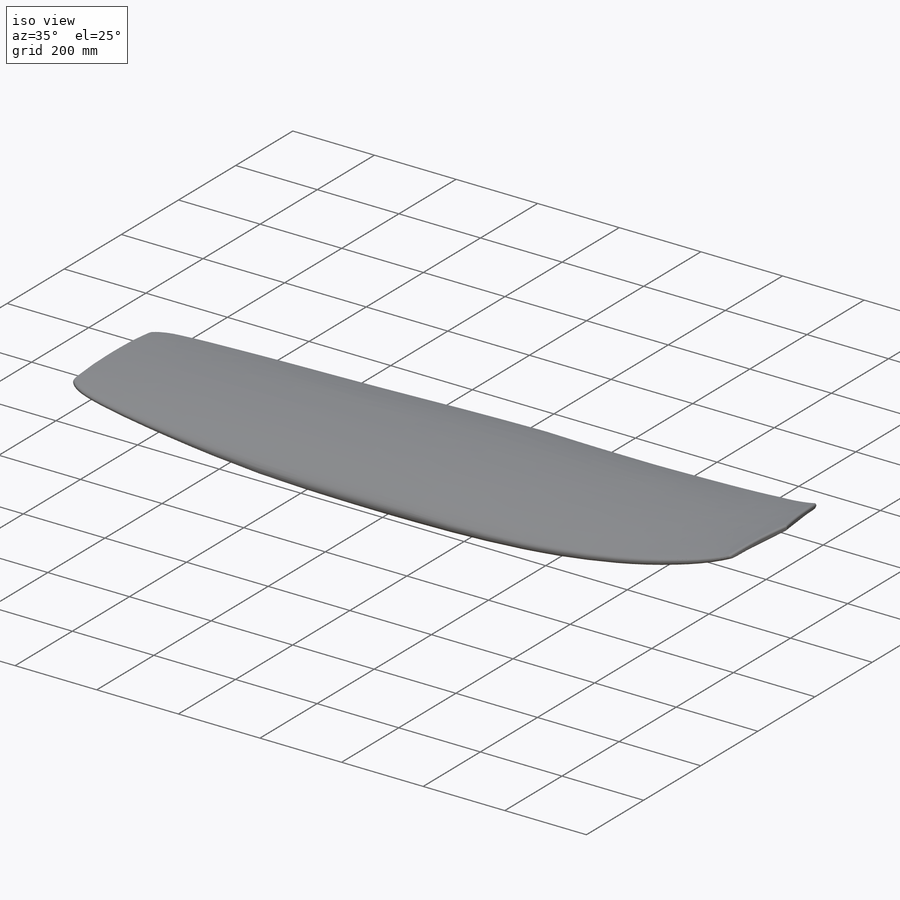
[diagram: iso view]
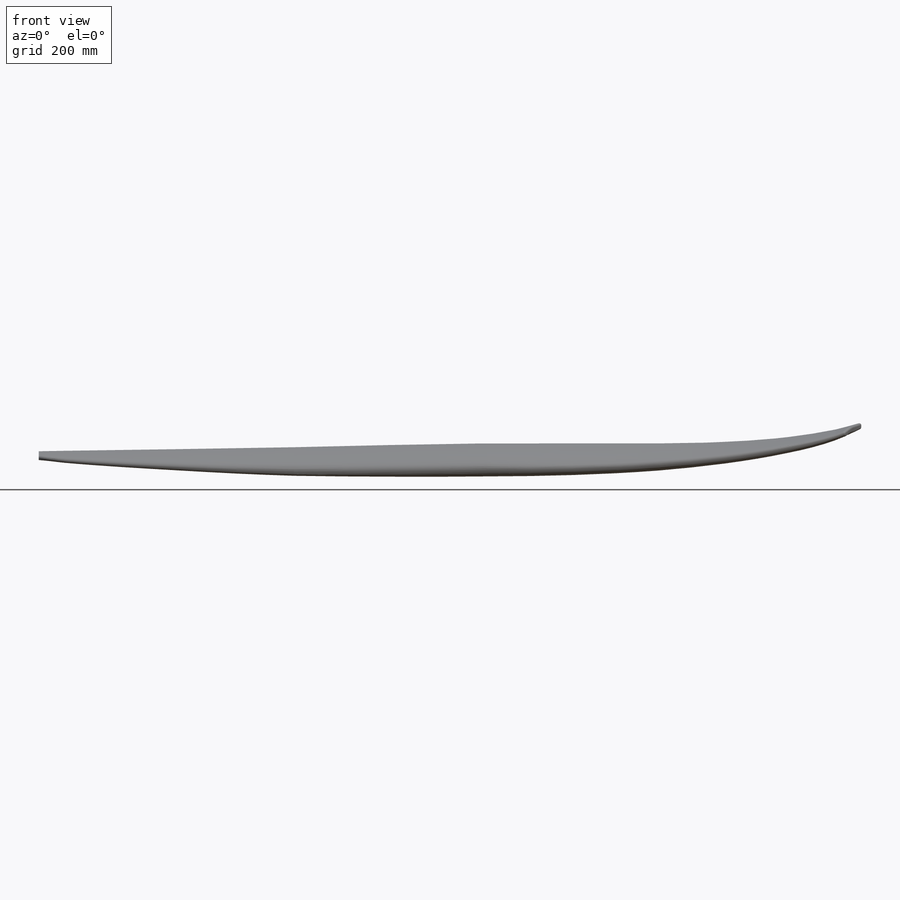
[diagram: front view]
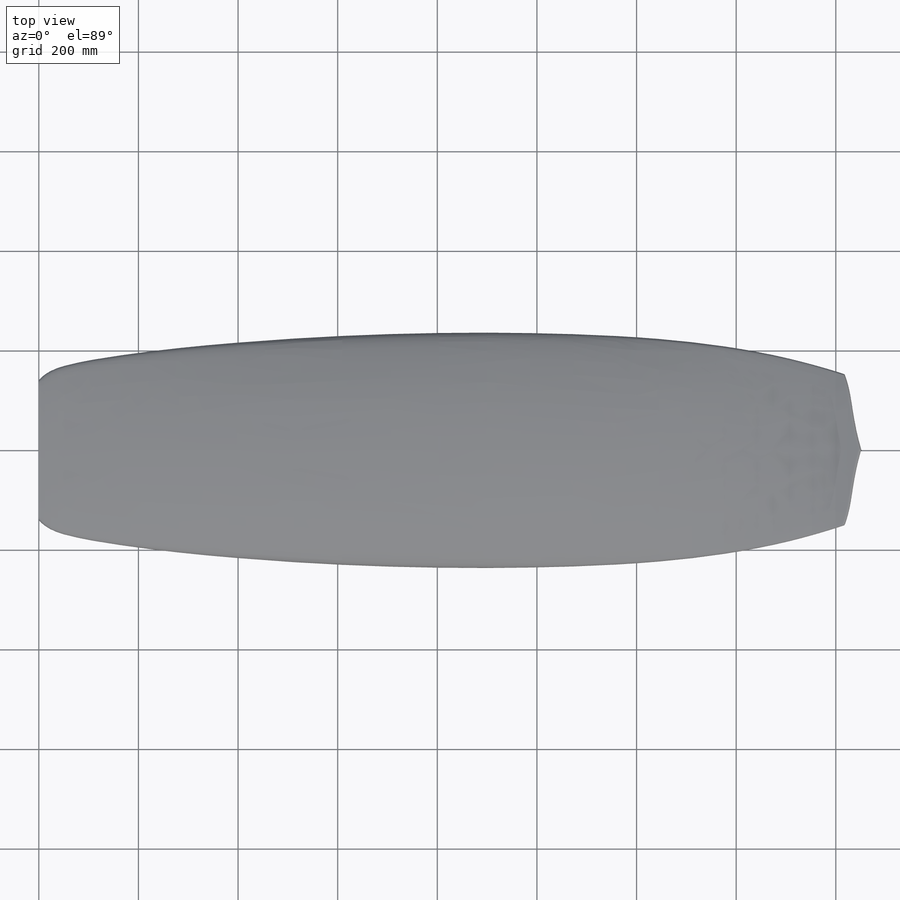
[diagram: top view]
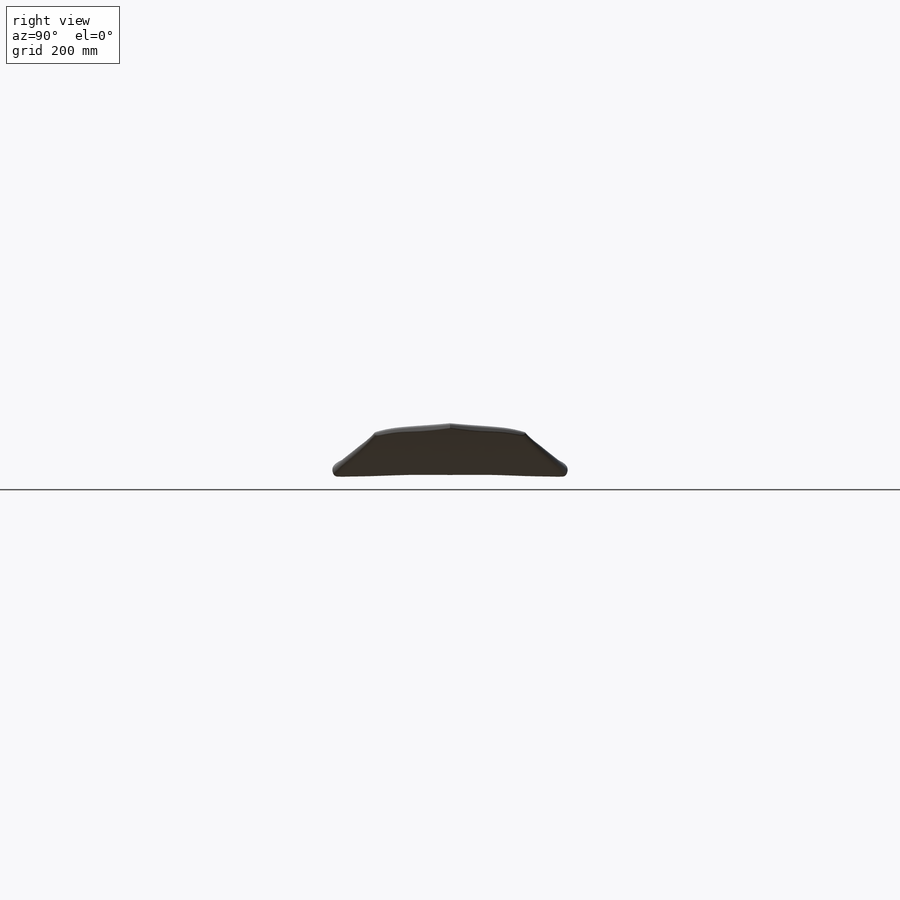
[diagram: right view]
SOLIDWORKS PART (.sldprt)
format: sldprt  version: not decoded by parser v0  size: 3,566,592 bytes
history: native  units: mm
features: sketch x52, plane x8, material x1, cut_extrude x1, mirror x1, fillet x1 (+13 scaffold rows collapsed)
feature tree (77):
  scaffold x13  (default folders/planes/origin — collapsed)
  material  "1060 Alloy"
  sketch  "REFERENCE"  dims[D1=1651.0mm D2=~1648.283638mm]
  sketch  "SIDE RAIL"  dims[D1=1651.0mm]
  sketch  "REF2"  dims[c1.D1=51.5mm c1.D2=512.4mm c1.D3=900.1mm c1.D4=1245.3mm c1.D5=1506.0mm c1.D6=1599.4mm c1.D7=~1648.283638mm c2.D1=51.5mm c2.D2=512.4mm c2.D3=900.1mm c2.D6=1599.4mm c2.D7=1651.0mm c2.D4=1245.3mm c2.D5=1506.0mm]
  sketch  "PROFILE"
  sketch  "Sketch14"
  sketch  "3DSketch3"
  plane  "0.0(1)"
  plane  "51.5(2)"
  plane  "512.4(3)"
  plane  "900.1(4)"
  plane  "1245.3(5)"
  plane  "1506.0(6)"
  plane  "1599.4(7)"
  sketch  "Sketch19"  dims[D1=~19.569618mm]
  sketch  "Sketch23"
  sketch  "Sketch25"
  sketch  "4.1"
  sketch  "1"  dims[D1=1.5mm D2=10.0mm]
  sketch  "2"  dims[D1=2.5mm]
  sketch  "3"  dims[D1=5.0mm D2=10.0mm]
  sketch  "4"  dims[D1=~14.440961mm D2=10.0mm D3=1000.0mm]
  sketch  "R3"
  sketch  "5.1"
  sketch  "5"  dims[D1=1499.0mm D2=10.0mm D3=30.0mm D4=135.0mm D5=26.0mm D6=~24.632459mm]
  sketch  "Sketch40"
  sketch  "6"  dims[D1=5.0mm]
  sketch  "Sketch44"
  sketch  "7"  dims[D1=4.0mm D2=4.0mm]
  sketch  "R2"
  sketch  "R1"
  sketch  "Sketch48"  dims[D1=0.0mm]
  sketch  "R3<8>"
  sketch  "R1<2>"
  sketch  "R2<2>"
  sketch  "Sketch49"  dims[D1=0.0mm]
  sketch  "R3<9>"
  sketch  "R2<3>"
  sketch  "R1<3>"
  sketch  "Sketch50"  dims[D1=0.0mm]
  sketch  "R3<10>"
  sketch  "R2<4>"
  sketch  "R1<4>"
  sketch  "Sketch51"  dims[D1=0.0mm]
  sketch  "R3<13>"
  sketch  "R2<7>"
  sketch  "R1<7>"
  sketch  "Sketch53"  dims[D1=0.0mm]
  sketch  "R3<14>"
  sketch  "R1<8>"
  sketch  "R2<8>"
  sketch  "Sketch54"
  plane  "Plane6"
  sketch  "Sketch74"  dims[D1=11.7mm]
  sketch  "3DSketch18"
  sketch  "Sketch75"  dims[c1.D1=12.0mm c1.D2=10.5mm c2.D1=11.7mm]
  sketch  "Sketch76"  dims[D1=0.0mm]
  sketch  "Sketch77"
  sketch  "Sketch78"
  sketch  "Sketch79"  dims[D1=0.0mm]
  cut_extrude  "Cut-Extrude3"  Depth=10mm
  mirror  "Mirror4"
  fillet  "Fillet1"  Radius=4mm
  sketch  "Sketch82"  dims[D1=10.0mm D2=10.0mm D3=76.2mm D4=10.0mm]
decode coverage: 23 of 55 modeling features carry decoded parameters
note: ~ marks probable driven/reference dimensions
note: suppression state not decoded; provenance and decode notes live in map.json
